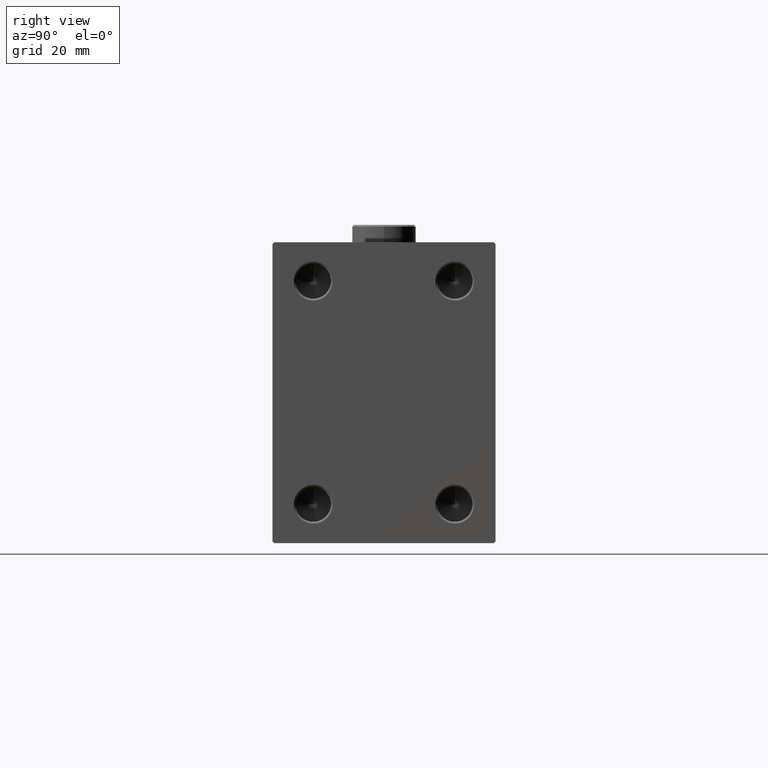
[diagram: clean part render]
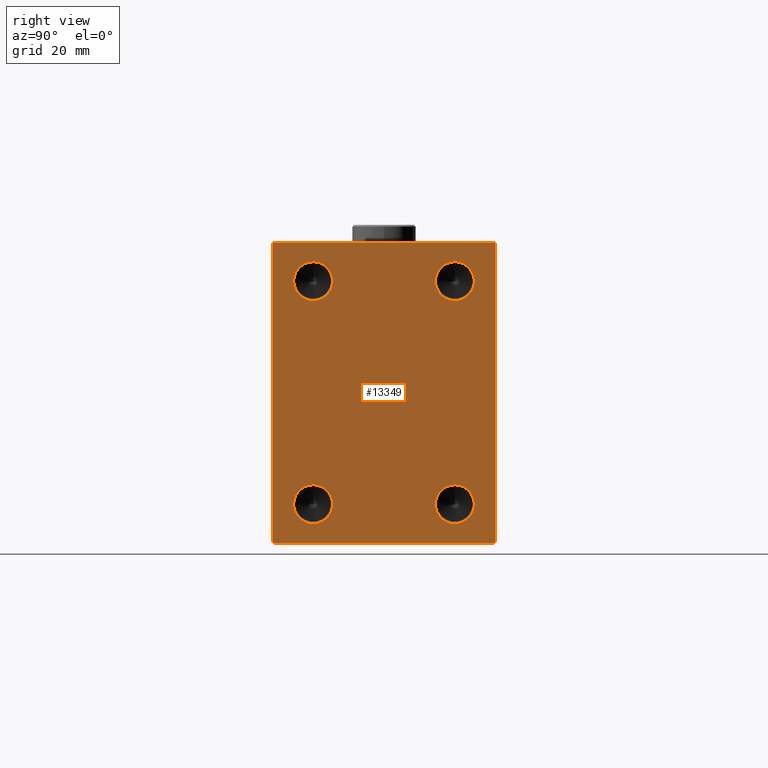
[diagram: same view with one face highlighted and labeled with its STEP entity id]
A machine part, right view. The second image highlights one B-rep face of the part: STEP entity #13349.
In plain terms, the highlighted planar face has unit normal (1, 0, 0).
Its self-contained STEP definition (entity closure, byte-faithful):
#103 = DIRECTION ( 'NONE',  ( 0.000000000000000000, 0.000000000000000000, -1.000000000000000000 ) ) ;
#220 = VERTEX_POINT ( 'NONE', #28277 ) ;
#421 = LINE ( 'NONE', #21641, #12222 ) ;
#442 = AXIS2_PLACEMENT_3D ( 'NONE', #33875, #37568, #20276 ) ;
#632 = CIRCLE ( 'NONE', #5714, 5.500000000000032863 ) ;
#1167 = CIRCLE ( 'NONE', #442, 5.500000000000032863 ) ;
#1597 = AXIS2_PLACEMENT_3D ( 'NONE', #36743, #26145, #34132 ) ;
#1698 = DIRECTION ( 'NONE',  ( 1.000000000000000000, -0.000000000000000000, -0.000000000000000000 ) ) ;
#1819 = DIRECTION ( 'NONE',  ( 0.000000000000000000, 0.000000000000000000, -1.000000000000000000 ) ) ;
#1903 = ORIENTED_EDGE ( 'NONE', *, *, #17026, .T. ) ;
#2177 = VECTOR ( 'NONE', #12882, 999.9999999999998863 ) ;
#2518 = FACE_BOUND ( 'NONE', #3008, .T. ) ;
#3006 = CARTESIAN_POINT ( 'NONE',  ( 163.0000000000000000, -20.00000000000000355, 31.50000000000000000 ) ) ;
#3008 = EDGE_LOOP ( 'NONE', ( #23482, #21174 ) ) ;
#3424 = PLANE ( 'NONE',  #7325 ) ;
#3820 = DIRECTION ( 'NONE',  ( 0.000000000000000000, -0.7071067811865474617, -0.7071067811865474617 ) ) ;
#4176 = VERTEX_POINT ( 'NONE', #34996 ) ;
#4923 = CARTESIAN_POINT ( 'NONE',  ( 163.0000000000000000, -31.50000000000000000, 41.99999999999998579 ) ) ;
#5714 = AXIS2_PLACEMENT_3D ( 'NONE', #39051, #15071, #103 ) ;
#5819 = CARTESIAN_POINT ( 'NONE',  ( 163.0000000000000000, -31.00000000000000000, -42.50000000000000711 ) ) ;
#5864 = EDGE_CURVE ( 'NONE', #27418, #6046, #26126, .T. ) ;
#6046 = VERTEX_POINT ( 'NONE', #24657 ) ;
#6197 = DIRECTION ( 'NONE',  ( 0.000000000000000000, 0.000000000000000000, -1.000000000000000000 ) ) ;
#6295 = LINE ( 'NONE', #27735, #28149 ) ;
#7325 = AXIS2_PLACEMENT_3D ( 'NONE', #20267, #31543, #6197 ) ;
#7590 = DIRECTION ( 'NONE',  ( 1.000000000000000000, -0.000000000000000000, -0.000000000000000000 ) ) ;
#7775 = AXIS2_PLACEMENT_3D ( 'NONE', #3006, #1698, #30274 ) ;
#9430 = CARTESIAN_POINT ( 'NONE',  ( 163.0000000000000000, -36.75000000000022737, -36.74999999999971578 ) ) ;
#9484 = CARTESIAN_POINT ( 'NONE',  ( 163.0000000000000000, 31.50000000000000000, 41.99999999999999289 ) ) ;
#9581 = CARTESIAN_POINT ( 'NONE',  ( 163.0000000000000000, 31.50000000000000000, 42.49999999999999289 ) ) ;
#10300 = ORIENTED_EDGE ( 'NONE', *, *, #43547, .F. ) ;
#11081 = AXIS2_PLACEMENT_3D ( 'NONE', #26388, #12985, #36985 ) ;
#11151 = DIRECTION ( 'NONE',  ( 0.000000000000000000, 1.000000000000000000, 0.000000000000000000 ) ) ;
#12126 = VECTOR ( 'NONE', #11151, 1000.000000000000000 ) ;
#12157 = CARTESIAN_POINT ( 'NONE',  ( 163.0000000000000000, -20.00000000000000355, 31.50000000000000000 ) ) ;
#12222 = VECTOR ( 'NONE', #18861, 1000.000000000000000 ) ;
#12882 = DIRECTION ( 'NONE',  ( -0.000000000000000000, 0.7071067811865425767, -0.7071067811865525687 ) ) ;
#12985 = DIRECTION ( 'NONE',  ( 1.000000000000000000, -0.000000000000000000, -0.000000000000000000 ) ) ;
#13109 = FACE_BOUND ( 'NONE', #20479, .T. ) ;
#13322 = EDGE_CURVE ( 'NONE', #13949, #14006, #17252, .T. ) ;
#13349 = ADVANCED_FACE ( 'NONE', ( #20946, #13109, #2518, #27182, #34989 ), #3424, .T. ) ;
#13949 = VERTEX_POINT ( 'NONE', #26113 ) ;
#14006 = VERTEX_POINT ( 'NONE', #5819 ) ;
#14028 = VERTEX_POINT ( 'NONE', #16642 ) ;
#14316 = ORIENTED_EDGE ( 'NONE', *, *, #17528, .F. ) ;
#14354 = AXIS2_PLACEMENT_3D ( 'NONE', #12157, #30593, #44636 ) ;
#15071 = DIRECTION ( 'NONE',  ( 1.000000000000000000, -0.000000000000000000, -0.000000000000000000 ) ) ;
#16054 = VECTOR ( 'NONE', #29591, 1000.000000000000114 ) ;
#16642 = CARTESIAN_POINT ( 'NONE',  ( 163.0000000000000000, 19.99999999999999645, -25.99999999999996447 ) ) ;
#17026 = EDGE_CURVE ( 'NONE', #14006, #27418, #21332, .T. ) ;
#17137 = DIRECTION ( 'NONE',  ( 0.000000000000000000, -1.632680918566406547E-16, 1.000000000000000000 ) ) ;
#17252 = LINE ( 'NONE', #9430, #2177 ) ;
#17311 = ORIENTED_EDGE ( 'NONE', *, *, #13322, .T. ) ;
#17424 = VECTOR ( 'NONE', #22312, 1000.000000000000114 ) ;
#17528 = EDGE_CURVE ( 'NONE', #24831, #4176, #34232, .T. ) ;
#18246 = AXIS2_PLACEMENT_3D ( 'NONE', #39179, #7590, #29261 ) ;
#18508 = VERTEX_POINT ( 'NONE', #27816 ) ;
#18761 = CARTESIAN_POINT ( 'NONE',  ( 163.0000000000000000, 36.75000000000001421, -36.75000000000001421 ) ) ;
#18861 = DIRECTION ( 'NONE',  ( 0.000000000000000000, 0.000000000000000000, -1.000000000000000000 ) ) ;
#19032 = EDGE_CURVE ( 'NONE', #4176, #24831, #43091, .T. ) ;
#19116 = AXIS2_PLACEMENT_3D ( 'NONE', #33395, #33841, #1819 ) ;
#20267 = CARTESIAN_POINT ( 'NONE',  ( 163.0000000000000000, 0.000000000000000000, 0.000000000000000000 ) ) ;
#20276 = DIRECTION ( 'NONE',  ( 0.000000000000000000, 0.000000000000000000, -1.000000000000000000 ) ) ;
#20479 = EDGE_LOOP ( 'NONE', ( #14316, #34629 ) ) ;
#20647 = EDGE_CURVE ( 'NONE', #39435, #18508, #1167, .T. ) ;
#20812 = EDGE_CURVE ( 'NONE', #39118, #13949, #421, .T. ) ;
#20946 = FACE_BOUND ( 'NONE', #41543, .T. ) ;
#21174 = ORIENTED_EDGE ( 'NONE', *, *, #37122, .F. ) ;
#21332 = LINE ( 'NONE', #21558, #12126 ) ;
#21343 = CARTESIAN_POINT ( 'NONE',  ( 163.0000000000000000, -36.74999999999999289, 36.74999999999999289 ) ) ;
#21558 = CARTESIAN_POINT ( 'NONE',  ( 163.0000000000000000, -31.50000000000000000, -42.50000000000000711 ) ) ;
#21641 = CARTESIAN_POINT ( 'NONE',  ( 163.0000000000000000, -31.50000000000000000, 42.49999999999998579 ) ) ;
#21848 = LINE ( 'NONE', #32446, #17424 ) ;
#22002 = CARTESIAN_POINT ( 'NONE',  ( 163.0000000000000000, -20.00000000000000355, 37.00000000000003553 ) ) ;
#22312 = DIRECTION ( 'NONE',  ( -0.000000000000000000, -0.7071067811865474617, 0.7071067811865474617 ) ) ;
#22976 = ORIENTED_EDGE ( 'NONE', *, *, #44308, .T. ) ;
#23004 = CARTESIAN_POINT ( 'NONE',  ( 163.0000000000000000, 19.99999999999999645, -37.00000000000003553 ) ) ;
#23482 = ORIENTED_EDGE ( 'NONE', *, *, #20647, .F. ) ;
#23533 = EDGE_CURVE ( 'NONE', #37355, #33713, #21848, .T. ) ;
#23539 = VECTOR ( 'NONE', #3820, 1000.000000000000114 ) ;
#23646 = DIRECTION ( 'NONE',  ( 0.000000000000000000, -1.000000000000000000, -1.101411730778925171E-16 ) ) ;
#24268 = CIRCLE ( 'NONE', #19116, 5.500000000000032863 ) ;
#24657 = CARTESIAN_POINT ( 'NONE',  ( 163.0000000000000000, 31.50000000000001421, -42.00000000000000711 ) ) ;
#24792 = LINE ( 'NONE', #21343, #23539 ) ;
#24831 = VERTEX_POINT ( 'NONE', #22002 ) ;
#25459 = EDGE_CURVE ( 'NONE', #32338, #220, #44723, .T. ) ;
#26113 = CARTESIAN_POINT ( 'NONE',  ( 163.0000000000000000, -31.50000000000000000, -42.00000000000000000 ) ) ;
#26126 = LINE ( 'NONE', #18761, #16054 ) ;
#26145 = DIRECTION ( 'NONE',  ( 1.000000000000000000, -0.000000000000000000, -0.000000000000000000 ) ) ;
#26337 = ORIENTED_EDGE ( 'NONE', *, *, #25459, .F. ) ;
#26388 = CARTESIAN_POINT ( 'NONE',  ( 163.0000000000000000, -20.00000000000000355, -31.50000000000000000 ) ) ;
#26439 = ORIENTED_EDGE ( 'NONE', *, *, #33826, .F. ) ;
#27182 = FACE_BOUND ( 'NONE', #33282, .T. ) ;
#27418 = VERTEX_POINT ( 'NONE', #38813 ) ;
#27735 = CARTESIAN_POINT ( 'NONE',  ( 163.0000000000000000, 31.50000000000001421, -42.50000000000000711 ) ) ;
#27816 = CARTESIAN_POINT ( 'NONE',  ( 163.0000000000000000, -20.00000000000000355, -37.00000000000003553 ) ) ;
#28149 = VECTOR ( 'NONE', #17137, 1000.000000000000000 ) ;
#28210 = ORIENTED_EDGE ( 'NONE', *, *, #35076, .T. ) ;
#28238 = EDGE_CURVE ( 'NONE', #40548, #14028, #632, .T. ) ;
#28277 = CARTESIAN_POINT ( 'NONE',  ( 163.0000000000000000, 19.99999999999999645, 37.00000000000003553 ) ) ;
#29247 = CARTESIAN_POINT ( 'NONE',  ( 163.0000000000000000, -20.00000000000000355, -25.99999999999996447 ) ) ;
#29261 = DIRECTION ( 'NONE',  ( 0.000000000000000000, 0.000000000000000000, -1.000000000000000000 ) ) ;
#29591 = DIRECTION ( 'NONE',  ( -0.000000000000000000, 0.7071067811865474617, 0.7071067811865474617 ) ) ;
#30274 = DIRECTION ( 'NONE',  ( 0.000000000000000000, 0.000000000000000000, -1.000000000000000000 ) ) ;
#30593 = DIRECTION ( 'NONE',  ( 1.000000000000000000, -0.000000000000000000, -0.000000000000000000 ) ) ;
#31543 = DIRECTION ( 'NONE',  ( 1.000000000000000000, 0.000000000000000000, 0.000000000000000000 ) ) ;
#31734 = CIRCLE ( 'NONE', #11081, 5.500000000000032863 ) ;
#32338 = VERTEX_POINT ( 'NONE', #37125 ) ;
#32446 = CARTESIAN_POINT ( 'NONE',  ( 163.0000000000000000, 36.75000000000000000, 36.75000000000000000 ) ) ;
#32976 = ORIENTED_EDGE ( 'NONE', *, *, #44724, .T. ) ;
#33265 = ORIENTED_EDGE ( 'NONE', *, *, #20812, .T. ) ;
#33282 = EDGE_LOOP ( 'NONE', ( #26439, #37049 ) ) ;
#33395 = CARTESIAN_POINT ( 'NONE',  ( 163.0000000000000000, 19.99999999999999645, -31.50000000000000000 ) ) ;
#33713 = VERTEX_POINT ( 'NONE', #42861 ) ;
#33826 = EDGE_CURVE ( 'NONE', #14028, #40548, #24268, .T. ) ;
#33841 = DIRECTION ( 'NONE',  ( 1.000000000000000000, -0.000000000000000000, -0.000000000000000000 ) ) ;
#33875 = CARTESIAN_POINT ( 'NONE',  ( 163.0000000000000000, -20.00000000000000355, -31.50000000000000000 ) ) ;
#34132 = DIRECTION ( 'NONE',  ( 0.000000000000000000, 0.000000000000000000, -1.000000000000000000 ) ) ;
#34232 = CIRCLE ( 'NONE', #14354, 5.500000000000032863 ) ;
#34629 = ORIENTED_EDGE ( 'NONE', *, *, #19032, .F. ) ;
#34684 = ORIENTED_EDGE ( 'NONE', *, *, #23533, .T. ) ;
#34989 = FACE_OUTER_BOUND ( 'NONE', #45512, .T. ) ;
#34996 = CARTESIAN_POINT ( 'NONE',  ( 163.0000000000000000, -20.00000000000000355, 25.99999999999996447 ) ) ;
#35076 = EDGE_CURVE ( 'NONE', #37795, #39118, #24792, .T. ) ;
#36743 = CARTESIAN_POINT ( 'NONE',  ( 163.0000000000000000, 19.99999999999999645, 31.50000000000000000 ) ) ;
#36765 = ORIENTED_EDGE ( 'NONE', *, *, #5864, .T. ) ;
#36822 = CARTESIAN_POINT ( 'NONE',  ( 163.0000000000000000, -31.00000000000000000, 42.49999999999998579 ) ) ;
#36985 = DIRECTION ( 'NONE',  ( 0.000000000000000000, 0.000000000000000000, -1.000000000000000000 ) ) ;
#37049 = ORIENTED_EDGE ( 'NONE', *, *, #28238, .F. ) ;
#37122 = EDGE_CURVE ( 'NONE', #18508, #39435, #31734, .T. ) ;
#37125 = CARTESIAN_POINT ( 'NONE',  ( 163.0000000000000000, 19.99999999999999645, 25.99999999999996447 ) ) ;
#37355 = VERTEX_POINT ( 'NONE', #9484 ) ;
#37568 = DIRECTION ( 'NONE',  ( 1.000000000000000000, -0.000000000000000000, -0.000000000000000000 ) ) ;
#37795 = VERTEX_POINT ( 'NONE', #36822 ) ;
#38437 = VECTOR ( 'NONE', #23646, 1000.000000000000000 ) ;
#38813 = CARTESIAN_POINT ( 'NONE',  ( 163.0000000000000000, 31.00000000000001421, -42.50000000000000711 ) ) ;
#39051 = CARTESIAN_POINT ( 'NONE',  ( 163.0000000000000000, 19.99999999999999645, -31.50000000000000000 ) ) ;
#39118 = VERTEX_POINT ( 'NONE', #4923 ) ;
#39179 = CARTESIAN_POINT ( 'NONE',  ( 163.0000000000000000, 19.99999999999999645, 31.50000000000000000 ) ) ;
#39435 = VERTEX_POINT ( 'NONE', #29247 ) ;
#40548 = VERTEX_POINT ( 'NONE', #23004 ) ;
#40624 = CIRCLE ( 'NONE', #1597, 5.500000000000032863 ) ;
#41543 = EDGE_LOOP ( 'NONE', ( #10300, #26337 ) ) ;
#41851 = LINE ( 'NONE', #9581, #38437 ) ;
#42861 = CARTESIAN_POINT ( 'NONE',  ( 163.0000000000000000, 31.00000000000000000, 42.49999999999999289 ) ) ;
#43091 = CIRCLE ( 'NONE', #7775, 5.500000000000032863 ) ;
#43547 = EDGE_CURVE ( 'NONE', #220, #32338, #40624, .T. ) ;
#44308 = EDGE_CURVE ( 'NONE', #33713, #37795, #41851, .T. ) ;
#44636 = DIRECTION ( 'NONE',  ( 0.000000000000000000, 0.000000000000000000, -1.000000000000000000 ) ) ;
#44723 = CIRCLE ( 'NONE', #18246, 5.500000000000032863 ) ;
#44724 = EDGE_CURVE ( 'NONE', #6046, #37355, #6295, .T. ) ;
#45512 = EDGE_LOOP ( 'NONE', ( #22976, #28210, #33265, #17311, #1903, #36765, #32976, #34684 ) ) ;